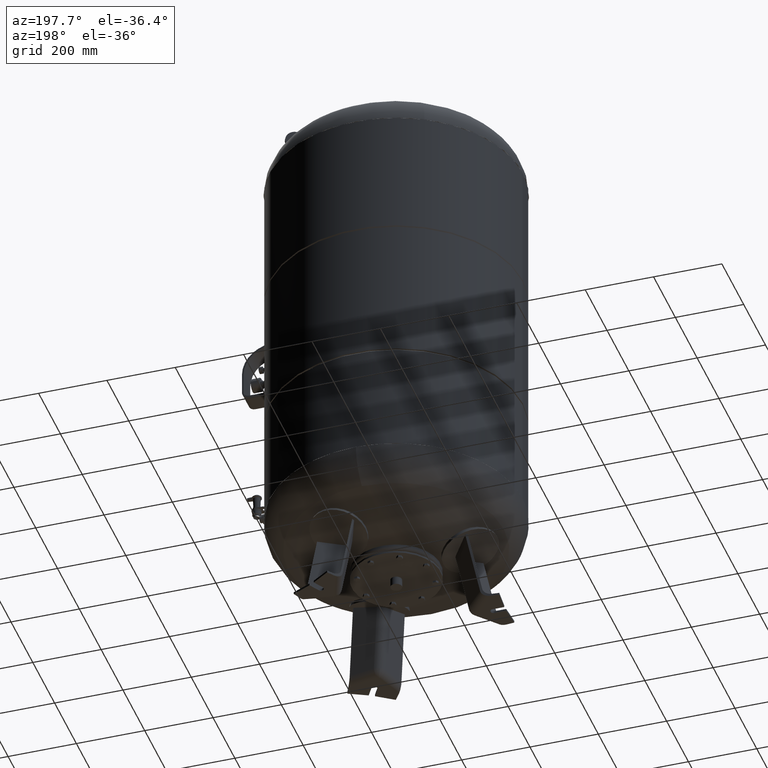
[diagram: clean part render]
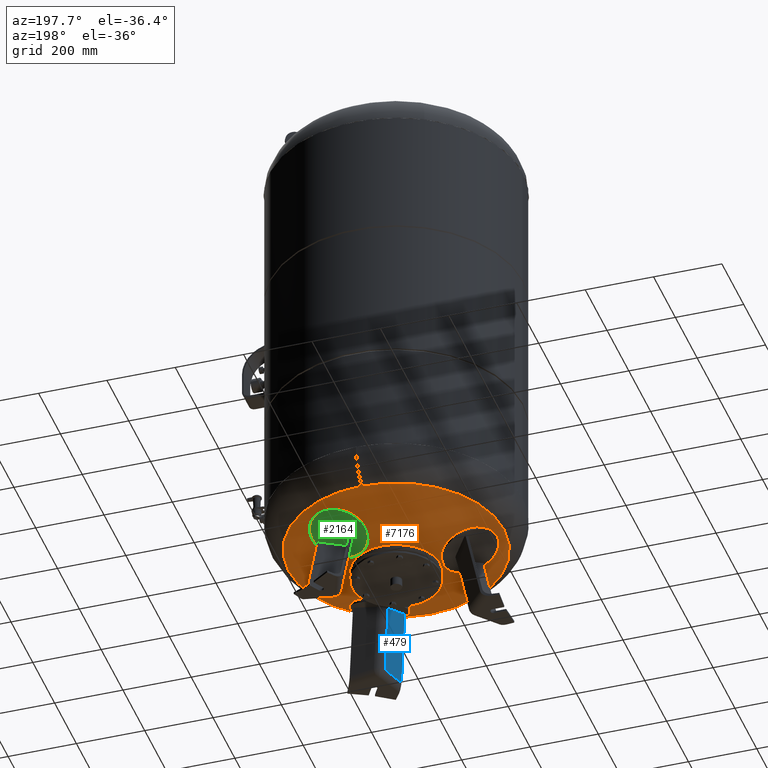
[diagram: same view with three faces highlighted in distinct colors, each labeled with its STEP entity id]
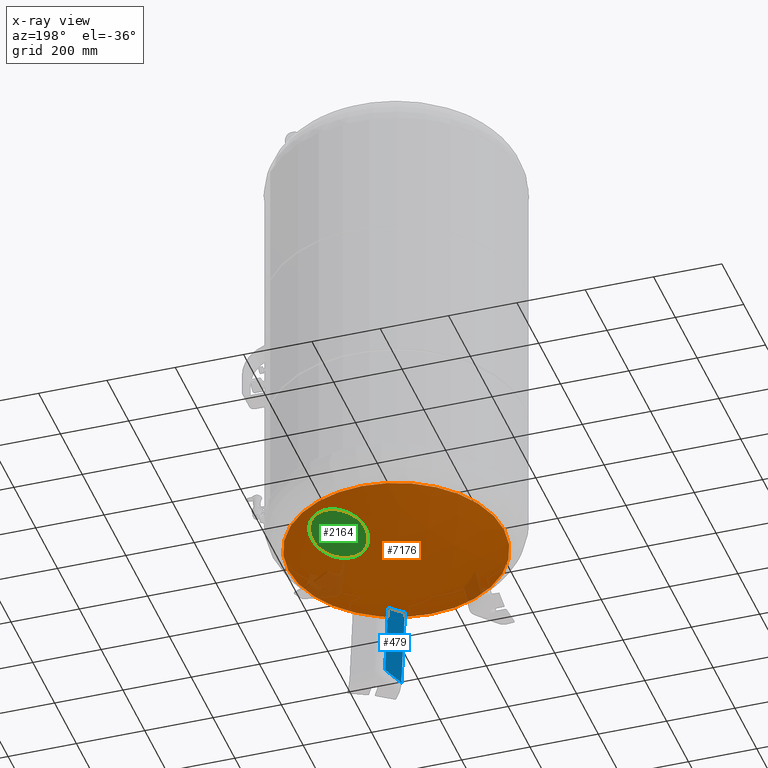
[diagram: x-ray of the same camera — body ghosted, the three highlighted faces saturated]
A machine part, auxiliary view with three faces highlighted in distinct colors.
The next image is the same camera in x-ray (body ghosted, the three faces saturated) — at least one of them is partly hidden behind the body in this view.
Their STEP definitions:

[orange] entity #7176 — the highlighted spherical surface has radius 594 mm.
#7115=CARTESIAN_POINT('',(0.0,-315.931034482758610,274.985505725079410));
#7116=VERTEX_POINT('',#7115);
#7132=CARTESIAN_POINT('',(-3.868912E-014,315.931034482758610,274.985505725079630));
#7133=VERTEX_POINT('',#7132);
#7141=CARTESIAN_POINT('',(-315.931034482758610,-1.671377E-014,274.985505725079520));
#7142=VERTEX_POINT('',#7141);
#7143=CARTESIAN_POINT('',(0.0,-1.671377E-014,274.985505725079520));
#7144=DIRECTION('',(0.0,0.0,1.0));
#7145=DIRECTION('',(-1.0,0.0,0.0));
#7146=AXIS2_PLACEMENT_3D('',#7143,#7144,#7145);
#7147=CIRCLE('',#7146,315.931034482758610);
#7148=EDGE_CURVE('',#7133,#7142,#7147,.T.);
#7150=CARTESIAN_POINT('',(0.0,-1.671377E-014,274.985505725079520));
#7151=DIRECTION('',(0.0,0.0,1.0));
#7152=DIRECTION('',(-1.0,0.0,0.0));
#7153=AXIS2_PLACEMENT_3D('',#7150,#7151,#7152);
#7154=CIRCLE('',#7153,315.931034482758610);
#7155=EDGE_CURVE('',#7142,#7116,#7154,.T.);
#7160=CARTESIAN_POINT('',(0.0,-1.091160E-013,778.0));
#7161=DIRECTION('',(0.0,-1.0,0.0));
#7162=DIRECTION('',(1.0,0.0,0.0));
#7163=AXIS2_PLACEMENT_3D('',#7160,#7161,#7162);
#7164=SPHERICAL_SURFACE('',#7163,594.0);
#7165=ORIENTED_EDGE('',*,*,#7155,.F.);
#7166=ORIENTED_EDGE('',*,*,#7148,.F.);
#7167=CARTESIAN_POINT('',(0.0,-1.671377E-014,274.985505725079520));
#7168=DIRECTION('',(0.0,0.0,1.0));
#7169=DIRECTION('',(-1.0,0.0,0.0));
#7170=AXIS2_PLACEMENT_3D('',#7167,#7168,#7169);
#7171=CIRCLE('',#7170,315.931034482758610);
#7172=EDGE_CURVE('',#7116,#7133,#7171,.T.);
#7173=ORIENTED_EDGE('',*,*,#7172,.F.);
#7174=EDGE_LOOP('',(#7165,#7166,#7173));
#7175=FACE_OUTER_BOUND('',#7174,.T.);
#7176=ADVANCED_FACE('',(#7175),#7164,.T.);

[blue] entity #479 — the highlighted planar face has unit normal (-0.9325, 0.3243, -0.1588).
#396=CARTESIAN_POINT('',(76.058063238802035,-164.009331508001030,206.419109493446830));
#397=VERTEX_POINT('',#396);
#413=CARTESIAN_POINT('',(48.640281420860759,-231.247438715379470,230.120878968208760));
#414=VERTEX_POINT('',#413);
#415=CARTESIAN_POINT('',(48.640281420860759,-231.247438715379470,230.120878968208760));
#416=CARTESIAN_POINT('',(53.792416942163925,-218.887273095988350,225.106085466333040));
#417=CARTESIAN_POINT('',(58.903361117512389,-206.481753689465880,220.425795489885990));
#418=CARTESIAN_POINT('',(66.691476754780354,-187.343946478440440,213.772030183207990));
#419=CARTESIAN_POINT('',(69.414767171695118,-180.606511789459430,211.538240111227740));
#420=CARTESIAN_POINT('',(73.434638293147032,-170.586376587281620,208.393982911335310));
#421=CARTESIAN_POINT('',(74.749478270491366,-167.296726295767770,207.390483448243770));
#422=CARTESIAN_POINT('',(76.058063238802035,-164.009331508001030,206.419109493446830));
#423=B_SPLINE_CURVE_WITH_KNOTS('',3,(#415,#416,#417,#418,#419,#420,#421,#422),.UNSPECIFIED.,.F.,.U.,(4,2,2,4),(536.762478861198470,540.755951889067660,542.927906845961390,543.990518214376830),.UNSPECIFIED.);
#424=EDGE_CURVE('',#414,#397,#423,.T.);
#449=CARTESIAN_POINT('',(80.295923400639992,-286.076618970567320,-67.735293817669458));
#450=DIRECTION('',(-0.932535537409927,0.324282864533177,-0.158802063077709));
#451=DIRECTION('',(0.103955845408880,-0.180056805991956,-0.978147600733806));
#452=AXIS2_PLACEMENT_3D('',#449,#450,#451);
#453=PLANE('',#452);
#454=CARTESIAN_POINT('',(95.760904562808065,-198.135653734647090,21.029948423057292));
#455=VERTEX_POINT('',#454);
#456=CARTESIAN_POINT('',(95.760904562808065,-198.135653734647090,21.029948423057292));
#457=DIRECTION('',(-0.103955845408880,0.180056805991956,0.978147600733805));
#458=VECTOR('',#457,189.530865210230810);
#459=LINE('',#456,#458);
#460=EDGE_CURVE('',#455,#397,#459,.T.);
#461=ORIENTED_EDGE('',*,*,#460,.F.);
#462=CARTESIAN_POINT('',(70.862106057392197,-269.736768022737690,21.029948423057292));
#463=VERTEX_POINT('',#462);
#464=CARTESIAN_POINT('',(70.862106057392197,-269.736768022737690,21.029948423057292));
#465=DIRECTION('',(0.328450760190054,0.944521094592691,0.0));
#466=VECTOR('',#465,75.806792138366546);
#467=LINE('',#464,#466);
#468=EDGE_CURVE('',#463,#455,#467,.T.);
#469=ORIENTED_EDGE('',*,*,#468,.F.);
#470=CARTESIAN_POINT('',(70.862106057392197,-269.736768022737690,21.029948423057292));
#471=DIRECTION('',(-0.103955845408880,0.180056805991956,0.978147600733806));
#472=VECTOR('',#471,213.762146314412690);
#473=LINE('',#470,#472);
#474=EDGE_CURVE('',#463,#414,#473,.T.);
#475=ORIENTED_EDGE('',*,*,#474,.T.);
#476=ORIENTED_EDGE('',*,*,#424,.T.);
#477=EDGE_LOOP('',(#461,#469,#475,#476));
#478=FACE_OUTER_BOUND('',#477,.T.);
#479=ADVANCED_FACE('',(#478),#453,.T.);

[green] entity #2164 — the highlighted spherical surface has radius 594 mm.
#2072=CARTESIAN_POINT('',(148.246026803778050,256.769650131147100,254.194420566592950));
#2073=VERTEX_POINT('',#2072);
#2082=CARTESIAN_POINT('',(68.891690551515865,119.323907941324150,193.271869143891850));
#2083=VERTEX_POINT('',#2082);
#2084=CARTESIAN_POINT('',(108.568858677646960,188.046779036235620,223.733144855242360));
#2085=DIRECTION('',(0.179183974772650,0.310355748208370,-0.933580426497202));
#2086=DIRECTION('',(0.466790213248601,0.808504365822488,0.358367949545300));
#2087=AXIS2_PLACEMENT_3D('',#2084,#2085,#2086);
#2088=CIRCLE('',#2087,85.0);
#2089=EDGE_CURVE('',#2083,#2073,#2088,.T.);
#2145=CARTESIAN_POINT('',(108.568858677646960,188.046779036235620,223.733144855242360));
#2146=DIRECTION('',(0.179183974772650,0.310355748208370,-0.933580426497202));
#2147=DIRECTION('',(0.466790213248601,0.808504365822488,0.358367949545300));
#2148=AXIS2_PLACEMENT_3D('',#2145,#2146,#2147);
#2149=CIRCLE('',#2148,85.0);
#2150=EDGE_CURVE('',#2073,#2083,#2149,.T.);
#2155=CARTESIAN_POINT('',(3.228948314852744,5.592702223124576,772.572841979124180));
#2156=DIRECTION('',(0.866025403784439,-0.500000000000000,-1.554724E-016));
#2157=DIRECTION('',(0.466790213248601,0.808504365822488,0.358367949545300));
#2158=AXIS2_PLACEMENT_3D('',#2155,#2156,#2157);
#2159=SPHERICAL_SURFACE('',#2158,594.0);
#2160=ORIENTED_EDGE('',*,*,#2150,.T.);
#2161=ORIENTED_EDGE('',*,*,#2089,.T.);
#2162=EDGE_LOOP('',(#2160,#2161));
#2163=FACE_OUTER_BOUND('',#2162,.T.);
#2164=ADVANCED_FACE('',(#2163),#2159,.T.);